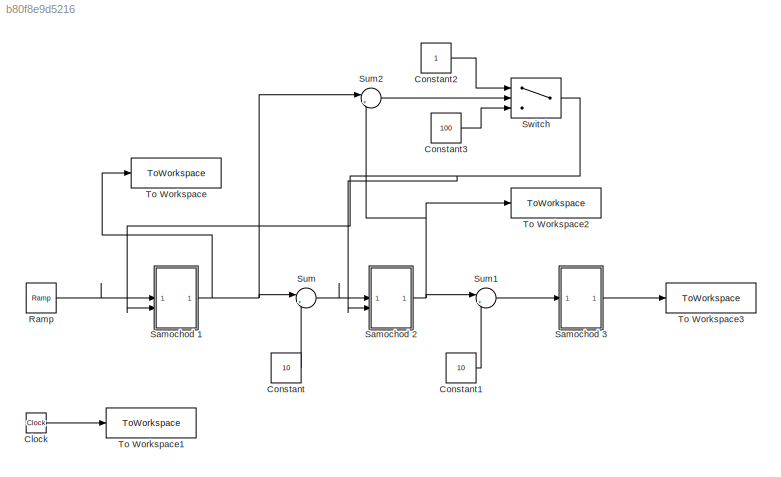
MODEL slx_b80f8e9d5216
KIND model
CONFIG AbsTol = auto
CONFIG EnableMultiTasking = off
CONFIG FixedStep = auto
CONFIG MaxStep = auto
CONFIG MinStep = auto
CONFIG RelTol = 1e-3
CONFIG SampleTimeConstraint = Unconstrained
CONFIG SolverName = VariableStepAuto
CONFIG StartTime = 0.0
CONFIG StopTime = 100
BLOCK [Clock] Clock
BLOCK [Constant] Constant
  Value = 10
BLOCK [Constant] Constant1
  Value = 10
BLOCK [Constant] Constant2
BLOCK [Constant] Constant3
  Value = 100
BLOCK [Reference] Ramp  REF=simulink/Sources/Ramp
  SourceBlock = simulink/Sources/Ramp
  SourceType = Ramp
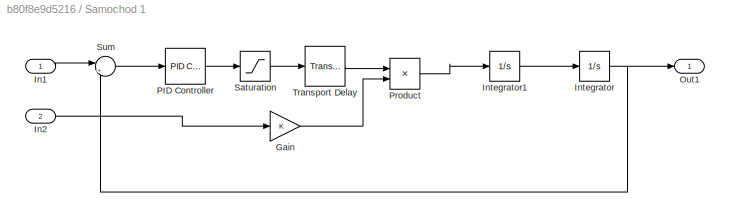
BLOCK [SubSystem] Samochod 1
BLOCK [Gain] Samochod 1/Gain
BLOCK [Inport] Samochod 1/In1
BLOCK [Inport] Samochod 1/In2
  Port = 2
BLOCK [Integrator] Samochod 1/Integrator
BLOCK [Integrator] Samochod 1/Integrator1
BLOCK [Outport] Samochod 1/Out1
BLOCK [Reference] Samochod 1/PID Controller  REF=slpidlib/PID Controller
  LibrarySourceBlock = simulink/Continuous/PID Controller
  SourceBlock = slpidlib/PID Controller
  SourceType = PID 1dof
BLOCK [Product] Samochod 1/Product
BLOCK [Saturate] Samochod 1/Saturation
  LowerLimit = -11
BLOCK [Sum] Samochod 1/Sum
  Inputs = |+-
BLOCK [TransportDelay] Samochod 1/Transport Delay
  DelayTime = 0.08
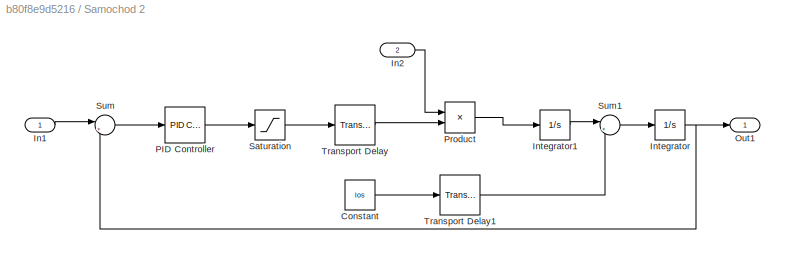
BLOCK [SubSystem] Samochod 2
BLOCK [Constant] Samochod 2/Constant
  Value = los
BLOCK [Inport] Samochod 2/In1
BLOCK [Inport] Samochod 2/In2
  Port = 2
BLOCK [Integrator] Samochod 2/Integrator
BLOCK [Integrator] Samochod 2/Integrator1
BLOCK [Outport] Samochod 2/Out1
BLOCK [Reference] Samochod 2/PID Controller  REF=slpidlib/PID Controller
  LibrarySourceBlock = simulink/Continuous/PID Controller
  SourceBlock = slpidlib/PID Controller
  SourceType = PID 1dof
BLOCK [Product] Samochod 2/Product
BLOCK [Saturate] Samochod 2/Saturation
  LowerLimit = -11
  UpperLimit = 3
BLOCK [Sum] Samochod 2/Sum
  Inputs = |+-
BLOCK [Sum] Samochod 2/Sum1
  Inputs = |++
BLOCK [TransportDelay] Samochod 2/Transport Delay
  DelayTime = 0.08
BLOCK [TransportDelay] Samochod 2/Transport Delay1
  DelayTime = 50
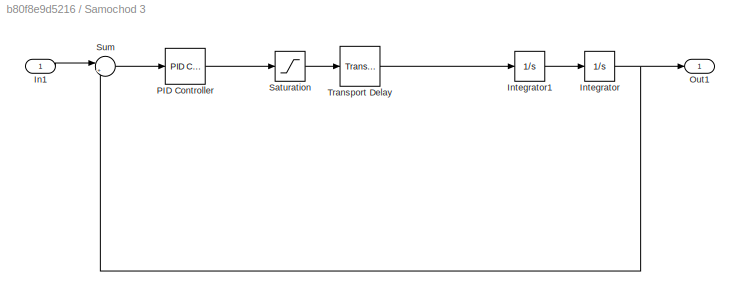
BLOCK [SubSystem] Samochod 3
BLOCK [Inport] Samochod 3/In1
BLOCK [Integrator] Samochod 3/Integrator
BLOCK [Integrator] Samochod 3/Integrator1
BLOCK [Outport] Samochod 3/Out1
BLOCK [Reference] Samochod 3/PID Controller  REF=slpidlib/PID Controller
  LibrarySourceBlock = simulink/Continuous/PID Controller
  SourceBlock = slpidlib/PID Controller
  SourceType = PID 1dof
BLOCK [Saturate] Samochod 3/Saturation
  LowerLimit = -11
  UpperLimit = 3
BLOCK [Sum] Samochod 3/Sum
  Inputs = |+-
BLOCK [TransportDelay] Samochod 3/Transport Delay
  DelayTime = 0.08
BLOCK [Sum] Sum
  Inputs = |+-
BLOCK [Sum] Sum1
  Inputs = |+-
BLOCK [Sum] Sum2
  Inputs = |+-
BLOCK [Switch] Switch
  Criteria = u2 > Threshold
  InputSameDT = off
  SaturateOnIntegerOverflow = off
  Threshold = -0.1
BLOCK [ToWorkspace] To Workspace
  FixptAsFi = on
  MaxDataPoints = inf
  SampleTime = -1
  VariableName = s1
BLOCK [ToWorkspace] To Workspace1
  FixptAsFi = on
  MaxDataPoints = inf
  SampleTime = -1
  VariableName = t
BLOCK [ToWorkspace] To Workspace2
  FixptAsFi = on
  MaxDataPoints = inf
  SampleTime = -1
  VariableName = s2
BLOCK [ToWorkspace] To Workspace3
  FixptAsFi = on
  MaxDataPoints = inf
  SampleTime = -1
  VariableName = s3
LINE Clock:1 -> To Workspace1:1
LINE Constant1:1 -> Sum1:2
LINE Constant2:1 -> Switch:1
LINE Constant3:1 -> Switch:3
LINE Constant:1 -> Sum:2
LINE Ramp:1 -> Samochod 1:1
LINE Samochod 1/Gain:1 -> Samochod 1/Product:2
LINE Samochod 1/In1:1 -> Samochod 1/Sum:1
LINE Samochod 1/In2:1 -> Samochod 1/Gain:1
LINE Samochod 1/Integrator1:1 -> Samochod 1/Integrator:1
NET Samochod 1/Integrator:1 -> Samochod 1/Out1:1, Samochod 1/Sum:2
LINE Samochod 1/PID Controller:1 -> Samochod 1/Saturation:1
LINE Samochod 1/Product:1 -> Samochod 1/Integrator1:1
LINE Samochod 1/Saturation:1 -> Samochod 1/Transport Delay:1
LINE Samochod 1/Sum:1 -> Samochod 1/PID Controller:1
LINE Samochod 1/Transport Delay:1 -> Samochod 1/Product:1
NET Samochod 1:1 -> Sum2:1, Sum:1, To Workspace:1
LINE Samochod 2/Constant:1 -> Samochod 2/Transport Delay1:1
LINE Samochod 2/In1:1 -> Samochod 2/Sum:1
LINE Samochod 2/In2:1 -> Samochod 2/Product:1
LINE Samochod 2/Integrator1:1 -> Samochod 2/Sum1:1
NET Samochod 2/Integrator:1 -> Samochod 2/Out1:1, Samochod 2/Sum:2
LINE Samochod 2/PID Controller:1 -> Samochod 2/Saturation:1
LINE Samochod 2/Product:1 -> Samochod 2/Integrator1:1
LINE Samochod 2/Saturation:1 -> Samochod 2/Transport Delay:1
LINE Samochod 2/Sum1:1 -> Samochod 2/Integrator:1
LINE Samochod 2/Sum:1 -> Samochod 2/PID Controller:1
LINE Samochod 2/Transport Delay1:1 -> Samochod 2/Sum1:2
LINE Samochod 2/Transport Delay:1 -> Samochod 2/Product:2
NET Samochod 2:1 -> Sum1:1, Sum2:2, To Workspace2:1
LINE Samochod 3/In1:1 -> Samochod 3/Sum:1
LINE Samochod 3/Integrator1:1 -> Samochod 3/Integrator:1
NET Samochod 3/Integrator:1 -> Samochod 3/Out1:1, Samochod 3/Sum:2
LINE Samochod 3/PID Controller:1 -> Samochod 3/Saturation:1
LINE Samochod 3/Saturation:1 -> Samochod 3/Transport Delay:1
LINE Samochod 3/Sum:1 -> Samochod 3/PID Controller:1
LINE Samochod 3/Transport Delay:1 -> Samochod 3/Integrator1:1
LINE Samochod 3:1 -> To Workspace3:1
LINE Sum1:1 -> Samochod 3:1
LINE Sum2:1 -> Switch:2
LINE Sum:1 -> Samochod 2:1
NET Switch:1 -> Samochod 1:2, Samochod 2:2
note: NET lines group one-source signal fan-out (src -> all destinations, sorted); 1:1 wires keep LINE
